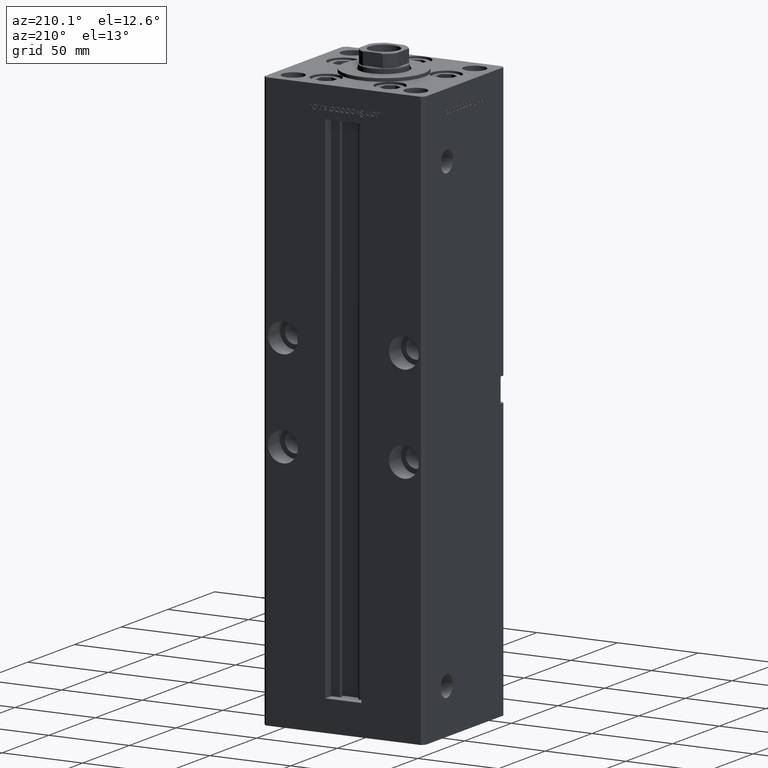
[diagram: clean part render]
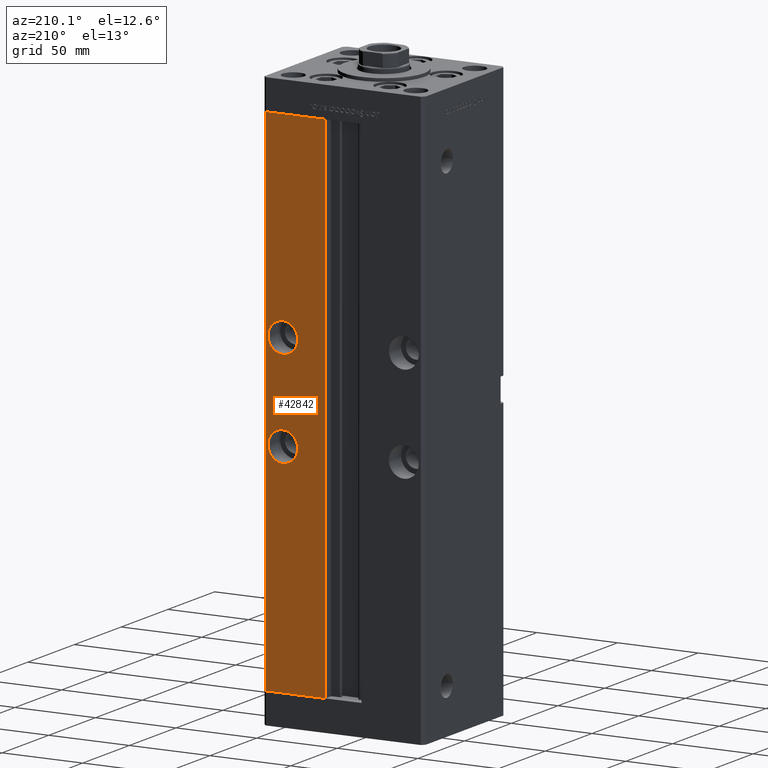
[diagram: same view with one face highlighted and labeled with its STEP entity id]
A machine part, auxiliary view. The second image highlights one B-rep face of the part: STEP entity #42842.
In plain terms, the highlighted planar face has unit normal (0, -1, 0).
Its self-contained STEP definition (entity closure, byte-faithful):
#691 = ORIENTED_EDGE ( 'NONE', *, *, #8536, .T. ) ;
#2059 = VERTEX_POINT ( 'NONE', #28812 ) ;
#2992 = EDGE_LOOP ( 'NONE', ( #14644, #10119 ) ) ;
#3222 = ORIENTED_EDGE ( 'NONE', *, *, #33474, .T. ) ;
#4703 = DIRECTION ( 'NONE',  ( 0.000000000000000000, -1.000000000000000000, 0.000000000000000000 ) ) ;
#5244 = EDGE_CURVE ( 'NONE', #21485, #24008, #36105, .T. ) ;
#5961 = VERTEX_POINT ( 'NONE', #14045 ) ;
#6417 = CARTESIAN_POINT ( 'NONE',  ( 37.50000000000000000, 43.50000000000000000, 144.7500000000000284 ) ) ;
#7345 = CARTESIAN_POINT ( 'NONE',  ( -11.24999999999999645, 43.50000000000000000, 318.5000000000000000 ) ) ;
#7585 = DIRECTION ( 'NONE',  ( 0.000000000000000000, 0.000000000000000000, 1.000000000000000000 ) ) ;
#8286 = DIRECTION ( 'NONE',  ( 0.000000000000000000, 1.000000000000000000, -0.000000000000000000 ) ) ;
#8536 = EDGE_CURVE ( 'NONE', #5961, #2059, #36099, .T. ) ;
#9905 = LINE ( 'NONE', #30330, #11294 ) ;
#10119 = ORIENTED_EDGE ( 'NONE', *, *, #48403, .F. ) ;
#11294 = VECTOR ( 'NONE', #27342, 1000.000000000000000 ) ;
#11343 = VERTEX_POINT ( 'NONE', #24947 ) ;
#12594 = DIRECTION ( 'NONE',  ( 0.000000000000000000, 0.000000000000000000, -1.000000000000000000 ) ) ;
#14045 = CARTESIAN_POINT ( 'NONE',  ( 11.24999999999998934, 43.50000000000000000, 318.5000000000000000 ) ) ;
#14102 = CIRCLE ( 'NONE', #39008, 9.250000000000008882 ) ;
#14644 = ORIENTED_EDGE ( 'NONE', *, *, #32543, .F. ) ;
#14866 = ORIENTED_EDGE ( 'NONE', *, *, #45969, .T. ) ;
#15385 = LINE ( 'NONE', #48157, #50116 ) ;
#21485 = VERTEX_POINT ( 'NONE', #39953 ) ;
#21886 = FACE_BOUND ( 'NONE', #39244, .T. ) ;
#24008 = VERTEX_POINT ( 'NONE', #6417 ) ;
#24200 = AXIS2_PLACEMENT_3D ( 'NONE', #28015, #36352, #7585 ) ;
#24947 = CARTESIAN_POINT ( 'NONE',  ( 11.24999999999999645, 43.50000000000000000, 0.000000000000000000 ) ) ;
#25858 = EDGE_LOOP ( 'NONE', ( #14866, #46011, #691, #3222 ) ) ;
#26535 = CARTESIAN_POINT ( 'NONE',  ( 37.50000000000000000, 43.50000000000000000, 186.2500000000000000 ) ) ;
#27342 = DIRECTION ( 'NONE',  ( -1.000000000000000000, 0.000000000000000000, 0.000000000000000000 ) ) ;
#28015 = CARTESIAN_POINT ( 'NONE',  ( 37.50000000000000000, 43.50000000000000000, 195.5000000000000000 ) ) ;
#28812 = CARTESIAN_POINT ( 'NONE',  ( 48.00000000000000711, 43.50000000000000000, 318.5000000000000000 ) ) ;
#30195 = CIRCLE ( 'NONE', #24200, 9.250000000000008882 ) ;
#30235 = CARTESIAN_POINT ( 'NONE',  ( 11.24999999999999645, 43.50000000000000000, 0.000000000000000000 ) ) ;
#30330 = CARTESIAN_POINT ( 'NONE',  ( -11.24999999999999645, 43.50000000000000000, 0.000000000000000000 ) ) ;
#32071 = DIRECTION ( 'NONE',  ( 1.000000000000000000, 0.000000000000000000, 0.000000000000000000 ) ) ;
#32202 = EDGE_CURVE ( 'NONE', #11343, #5961, #50634, .T. ) ;
#32543 = EDGE_CURVE ( 'NONE', #39242, #47089, #14102, .T. ) ;
#32564 = CARTESIAN_POINT ( 'NONE',  ( 37.50000000000000000, 43.50000000000000000, 204.7500000000000284 ) ) ;
#33277 = ORIENTED_EDGE ( 'NONE', *, *, #5244, .F. ) ;
#33445 = CARTESIAN_POINT ( 'NONE',  ( 48.00000000000000711, 43.50000000000000000, 0.000000000000000000 ) ) ;
#33474 = EDGE_CURVE ( 'NONE', #2059, #46493, #15385, .T. ) ;
#34244 = FACE_OUTER_BOUND ( 'NONE', #25858, .T. ) ;
#34565 = CARTESIAN_POINT ( 'NONE',  ( 37.50000000000000000, 43.50000000000000000, 135.5000000000000000 ) ) ;
#35141 = ORIENTED_EDGE ( 'NONE', *, *, #49036, .F. ) ;
#36099 = LINE ( 'NONE', #7345, #46214 ) ;
#36105 = CIRCLE ( 'NONE', #48103, 9.250000000000008882 ) ;
#36253 = AXIS2_PLACEMENT_3D ( 'NONE', #34565, #43152, #39667 ) ;
#36352 = DIRECTION ( 'NONE',  ( 0.000000000000000000, 1.000000000000000000, 0.000000000000000000 ) ) ;
#37023 = AXIS2_PLACEMENT_3D ( 'NONE', #41518, #4703, #42038 ) ;
#37033 = CARTESIAN_POINT ( 'NONE',  ( 37.50000000000000000, 43.50000000000000000, 135.5000000000000000 ) ) ;
#39008 = AXIS2_PLACEMENT_3D ( 'NONE', #43585, #39843, #39570 ) ;
#39242 = VERTEX_POINT ( 'NONE', #32564 ) ;
#39244 = EDGE_LOOP ( 'NONE', ( #35141, #33277 ) ) ;
#39570 = DIRECTION ( 'NONE',  ( 0.000000000000000000, 0.000000000000000000, 1.000000000000000000 ) ) ;
#39667 = DIRECTION ( 'NONE',  ( 0.000000000000000000, 0.000000000000000000, -1.000000000000000000 ) ) ;
#39843 = DIRECTION ( 'NONE',  ( 0.000000000000000000, 1.000000000000000000, 0.000000000000000000 ) ) ;
#39953 = CARTESIAN_POINT ( 'NONE',  ( 37.50000000000000000, 43.50000000000000000, 126.2500000000000000 ) ) ;
#40363 = DIRECTION ( 'NONE',  ( -0.000000000000000000, -0.000000000000000000, -1.000000000000000000 ) ) ;
#41518 = CARTESIAN_POINT ( 'NONE',  ( -11.24999999999999645, 43.50000000000000000, 318.5000000000000000 ) ) ;
#42038 = DIRECTION ( 'NONE',  ( 0.000000000000000000, -0.000000000000000000, -1.000000000000000000 ) ) ;
#42842 = ADVANCED_FACE ( 'NONE', ( #21886, #50617, #34244 ), #45819, .F. ) ;
#43114 = CIRCLE ( 'NONE', #36253, 9.250000000000008882 ) ;
#43152 = DIRECTION ( 'NONE',  ( 0.000000000000000000, 1.000000000000000000, -0.000000000000000000 ) ) ;
#43585 = CARTESIAN_POINT ( 'NONE',  ( 37.50000000000000000, 43.50000000000000000, 195.5000000000000000 ) ) ;
#45819 = PLANE ( 'NONE',  #37023 ) ;
#45969 = EDGE_CURVE ( 'NONE', #46493, #11343, #9905, .T. ) ;
#46011 = ORIENTED_EDGE ( 'NONE', *, *, #32202, .T. ) ;
#46214 = VECTOR ( 'NONE', #32071, 1000.000000000000000 ) ;
#46493 = VERTEX_POINT ( 'NONE', #33445 ) ;
#46621 = DIRECTION ( 'NONE',  ( -0.000000000000000000, -0.000000000000000000, 1.000000000000000000 ) ) ;
#47089 = VERTEX_POINT ( 'NONE', #26535 ) ;
#48103 = AXIS2_PLACEMENT_3D ( 'NONE', #37033, #8286, #12594 ) ;
#48157 = CARTESIAN_POINT ( 'NONE',  ( 48.00000000000000711, 43.50000000000000000, 318.5000000000000000 ) ) ;
#48403 = EDGE_CURVE ( 'NONE', #47089, #39242, #30195, .T. ) ;
#49036 = EDGE_CURVE ( 'NONE', #24008, #21485, #43114, .T. ) ;
#50116 = VECTOR ( 'NONE', #40363, 1000.000000000000000 ) ;
#50617 = FACE_BOUND ( 'NONE', #2992, .T. ) ;
#50634 = LINE ( 'NONE', #30235, #52681 ) ;
#52681 = VECTOR ( 'NONE', #46621, 1000.000000000000000 ) ;